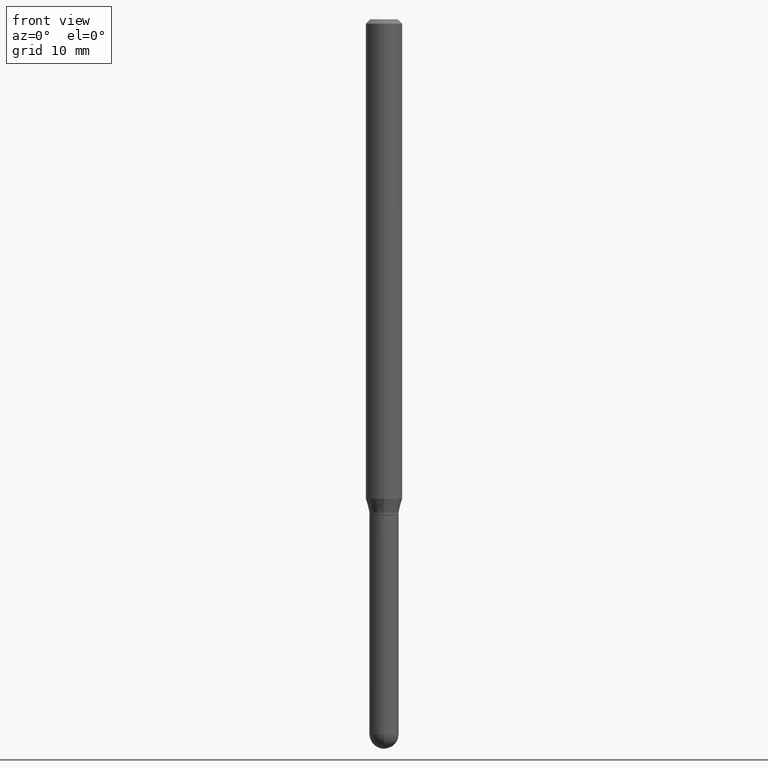
[diagram: clean part render]
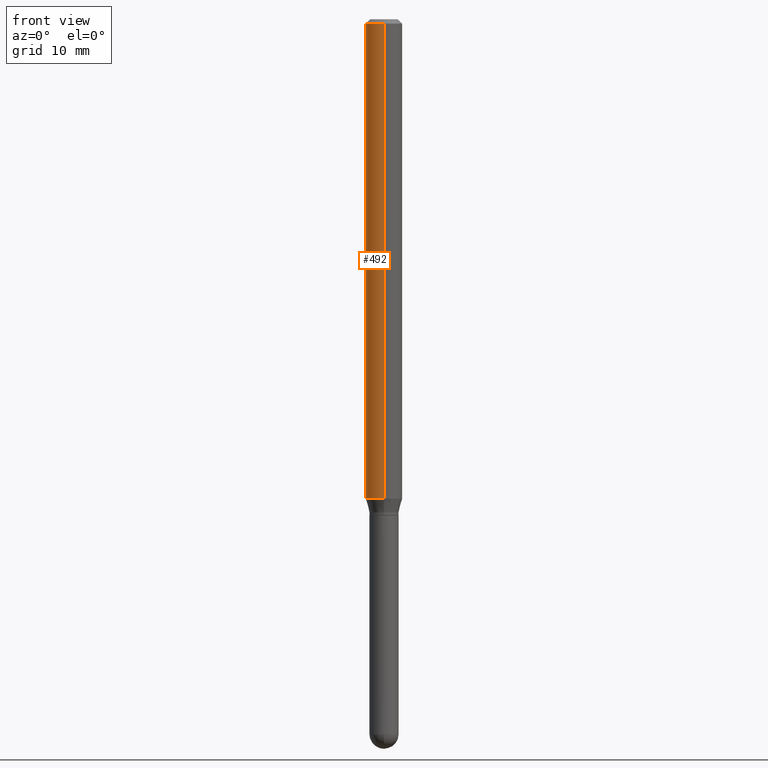
[diagram: same view with one face highlighted and labeled with its STEP entity id]
A machine part, front view. The second image highlights one B-rep face of the part: STEP entity #492.
In plain terms, the highlighted cylindrical surface (edge-blend (fillet) strip) has radius 1.5875 mm, axis along (-0, 0, 1).
Its self-contained STEP definition (entity closure, byte-faithful):
#7 = CARTESIAN_POINT ( 'NONE',  ( 4.440892098501028481E-16, 0.06249999999999429623, -1.643349364905388077 ) ) ;
#8 = VERTEX_POINT ( 'NONE', #206 ) ;
#16 = CARTESIAN_POINT ( 'NONE',  ( -4.364351673553512403E-16, -0.06250000000000570377, -1.643349364905387633 ) ) ;
#18 = DIRECTION ( 'NONE',  ( -2.445537588112749651E-29, 3.491382839207979536E-15, 1.000000000000000000 ) ) ;
#21 = CARTESIAN_POINT ( 'NONE',  ( 0.000000000000000000, 0.000000000000000000, 0.000000000000000000 ) ) ;
#31 = CARTESIAN_POINT ( 'NONE',  ( -4.364351673553916201E-16, -0.06250000000000000000, 2.182114274504987210E-16 ) ) ;
#42 = CARTESIAN_POINT ( 'NONE',  ( 4.440892098500625669E-16, 0.06250000000000000000, -2.182114274504987210E-16 ) ) ;
#43 = VERTEX_POINT ( 'NONE', #409 ) ;
#49 = VECTOR ( 'NONE', #341, 39.37007874015748143 ) ;
#56 = ORIENTED_EDGE ( 'NONE', *, *, #95, .T. ) ;
#76 = CARTESIAN_POINT ( 'NONE',  ( 4.018872642277341407E-29, -5.737561771454002160E-15, -1.643349364905387855 ) ) ;
#80 = CIRCLE ( 'NONE', #398, 0.06250000000000000000 ) ;
#93 = DIRECTION ( 'NONE',  ( -6.982962677686265922E-15, -1.000000000000000000, 3.491382839207979536E-15 ) ) ;
#95 = EDGE_CURVE ( 'NONE', #498, #43, #500, .T. ) ;
#112 = ORIENTED_EDGE ( 'NONE', *, *, #364, .T. ) ;
#116 = LINE ( 'NONE', #42, #416 ) ;
#149 = DIRECTION ( 'NONE',  ( -2.445537588112749651E-29, 3.491382839207979536E-15, 1.000000000000000000 ) ) ;
#154 = AXIS2_PLACEMENT_3D ( 'NONE', #157, #356, #475 ) ;
#157 = CARTESIAN_POINT ( 'NONE',  ( 3.668306382169205051E-31, -5.237074258812084429E-17, -0.01500000000000032904 ) ) ;
#202 = CIRCLE ( 'NONE', #154, 0.06250000000000000000 ) ;
#205 = ORIENTED_EDGE ( 'NONE', *, *, #405, .F. ) ;
#206 = CARTESIAN_POINT ( 'NONE',  ( 4.440892098501030453E-16, 0.06249999999999995143, -0.01500000000000054588 ) ) ;
#279 = AXIS2_PLACEMENT_3D ( 'NONE', #21, #18, #93 ) ;
#309 = DIRECTION ( 'NONE',  ( -2.445537588112749651E-29, 3.491382839207979536E-15, 1.000000000000000000 ) ) ;
#310 = VERTEX_POINT ( 'NONE', #7 ) ;
#341 = DIRECTION ( 'NONE',  ( -2.445537588112749651E-29, 3.491382839207979536E-15, 1.000000000000000000 ) ) ;
#356 = DIRECTION ( 'NONE',  ( -2.445537588112749651E-29, 3.491382839207979536E-15, 1.000000000000000000 ) ) ;
#359 = ORIENTED_EDGE ( 'NONE', *, *, #375, .F. ) ;
#364 = EDGE_CURVE ( 'NONE', #310, #498, #80, .T. ) ;
#365 = FACE_OUTER_BOUND ( 'NONE', #403, .T. ) ;
#375 = EDGE_CURVE ( 'NONE', #310, #8, #116, .T. ) ;
#398 = AXIS2_PLACEMENT_3D ( 'NONE', #76, #149, #511 ) ;
#403 = EDGE_LOOP ( 'NONE', ( #359, #112, #56, #205 ) ) ;
#405 = EDGE_CURVE ( 'NONE', #8, #43, #202, .T. ) ;
#409 = CARTESIAN_POINT ( 'NONE',  ( -4.364351673553912750E-16, -0.06250000000000005551, -0.01500000000000011047 ) ) ;
#416 = VECTOR ( 'NONE', #309, 39.37007874015748143 ) ;
#475 = DIRECTION ( 'NONE',  ( -6.982962677686265922E-15, -1.000000000000000000, 3.483106191921935554E-15 ) ) ;
#492 = ADVANCED_FACE ( 'NONE', ( #365 ), #495, .T. ) ;
#495 = CYLINDRICAL_SURFACE ( 'NONE', #279, 0.06250000000000000000 ) ;
#498 = VERTEX_POINT ( 'NONE', #16 ) ;
#500 = LINE ( 'NONE', #31, #49 ) ;
#511 = DIRECTION ( 'NONE',  ( -6.982962677686265922E-15, -1.000000000000000000, 4.370956789862821150E-15 ) ) ;